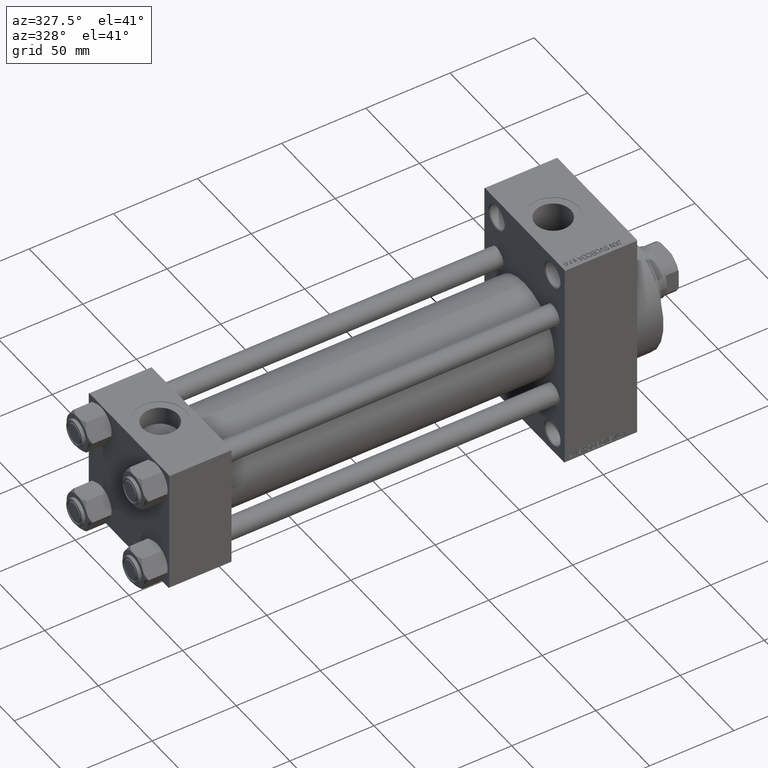
[diagram: clean part render]
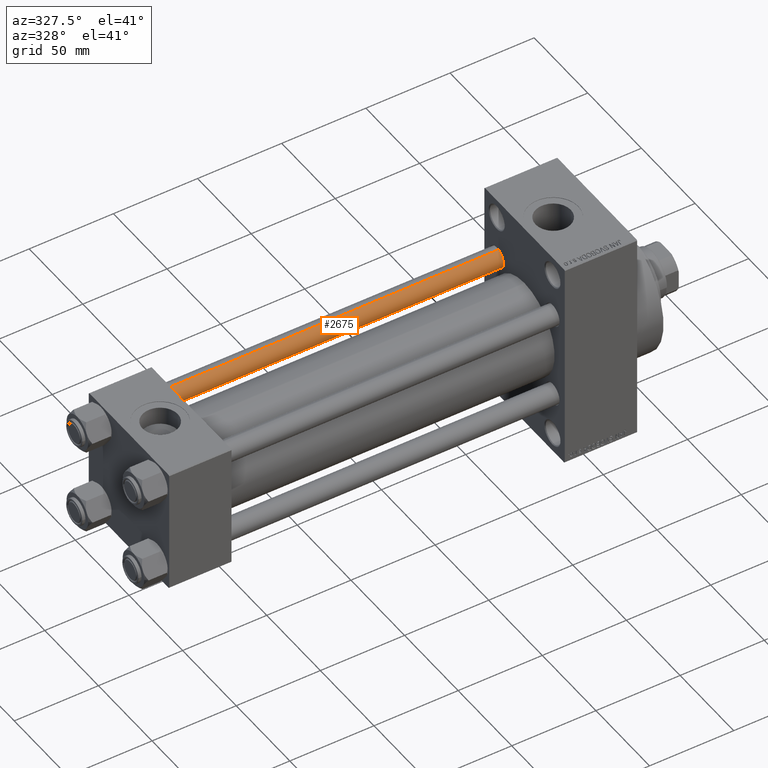
[diagram: same view with one face highlighted and labeled with its STEP entity id]
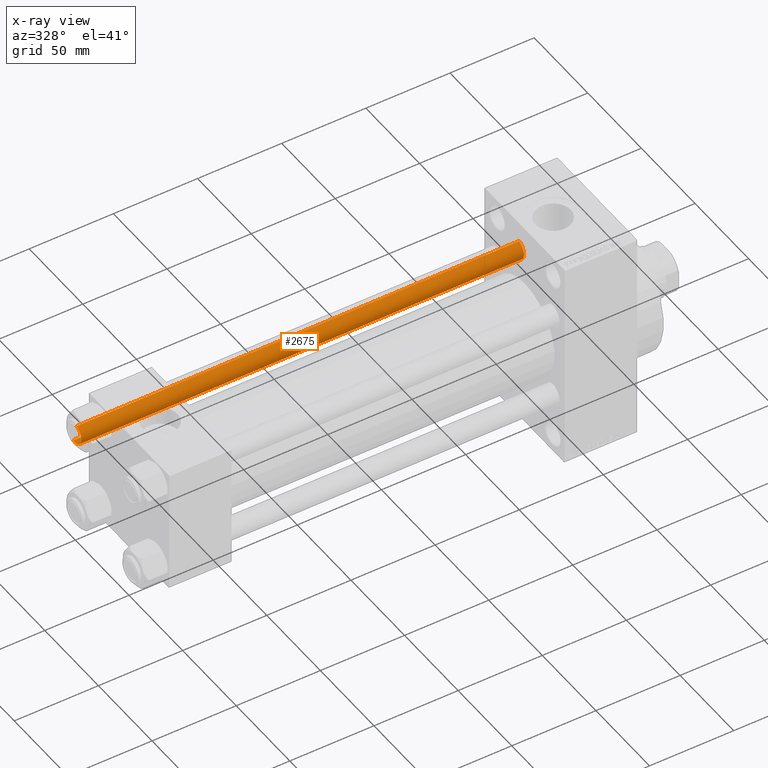
[diagram: x-ray of the same camera — body ghosted, the highlighted face saturated]
A machine part, auxiliary view. The second image highlights one B-rep face of the part: STEP entity #2675.
The next image is the same camera in x-ray: the body ghosted, the highlighted face saturated — about 0% of this face is hidden behind the body in this view.
In plain terms, the highlighted cylindrical surface (edge-blend (fillet) strip) has radius 6 mm, axis along (-1, -0, 0).
Its self-contained STEP definition (entity closure, byte-faithful):
#136 = VERTEX_POINT ( 'NONE', #18046 ) ;
#387 = ORIENTED_EDGE ( 'NONE', *, *, #24509, .T. ) ;
#1089 = CARTESIAN_POINT ( 'NONE',  ( 0.000000000000000000, 0.000000000000000000, 0.5000000000000559552 ) ) ;
#1112 = ORIENTED_EDGE ( 'NONE', *, *, #36947, .F. ) ;
#2675 = ADVANCED_FACE ( 'NONE', ( #31150 ), #12970, .T. ) ;
#3043 = CARTESIAN_POINT ( 'NONE',  ( -6.000000000000000888, 0.000000000000000000, 264.0000000000000000 ) ) ;
#5539 = VERTEX_POINT ( 'NONE', #25269 ) ;
#5643 = EDGE_CURVE ( 'NONE', #21197, #46871, #29186, .T. ) ;
#6100 = CARTESIAN_POINT ( 'NONE',  ( 6.000000000000000888, 7.347880794884120722E-16, 264.0000000000000000 ) ) ;
#11184 = LINE ( 'NONE', #3043, #37080 ) ;
#12970 = CYLINDRICAL_SURFACE ( 'NONE', #26904, 6.000000000000000888 ) ;
#13320 = EDGE_CURVE ( 'NONE', #46871, #5539, #11184, .T. ) ;
#13900 = DIRECTION ( 'NONE',  ( -0.000000000000000000, -0.000000000000000000, -1.000000000000000000 ) ) ;
#15223 = DIRECTION ( 'NONE',  ( 0.000000000000000000, 0.000000000000000000, -1.000000000000000000 ) ) ;
#15702 = DIRECTION ( 'NONE',  ( 1.000000000000000000, 0.000000000000000000, 0.000000000000000000 ) ) ;
#15723 = DIRECTION ( 'NONE',  ( -0.000000000000000000, -0.000000000000000000, 1.000000000000000000 ) ) ;
#18046 = CARTESIAN_POINT ( 'NONE',  ( 6.000000000000000888, 7.347880794884120722E-16, 0.5000000000000559552 ) ) ;
#19771 = CARTESIAN_POINT ( 'NONE',  ( 0.000000000000000000, 0.000000000000000000, 263.5000000000000568 ) ) ;
#20047 = ORIENTED_EDGE ( 'NONE', *, *, #5643, .T. ) ;
#21197 = VERTEX_POINT ( 'NONE', #44230 ) ;
#21892 = EDGE_LOOP ( 'NONE', ( #1112, #20047, #46112, #387 ) ) ;
#24509 = EDGE_CURVE ( 'NONE', #5539, #136, #47153, .T. ) ;
#25074 = DIRECTION ( 'NONE',  ( -0.000000000000000000, -0.000000000000000000, -1.000000000000000000 ) ) ;
#25269 = CARTESIAN_POINT ( 'NONE',  ( -6.000000000000000888, 0.000000000000000000, 0.5000000000000559552 ) ) ;
#25666 = AXIS2_PLACEMENT_3D ( 'NONE', #1089, #15723, #27664 ) ;
#26904 = AXIS2_PLACEMENT_3D ( 'NONE', #35206, #13900, #32090 ) ;
#27664 = DIRECTION ( 'NONE',  ( 1.000000000000000000, 0.000000000000000000, 0.000000000000000000 ) ) ;
#29058 = DIRECTION ( 'NONE',  ( -0.000000000000000000, -0.000000000000000000, -1.000000000000000000 ) ) ;
#29186 = CIRCLE ( 'NONE', #43749, 6.000000000000000888 ) ;
#31150 = FACE_OUTER_BOUND ( 'NONE', #21892, .T. ) ;
#32090 = DIRECTION ( 'NONE',  ( -1.000000000000000000, 0.000000000000000000, 0.000000000000000000 ) ) ;
#34880 = CARTESIAN_POINT ( 'NONE',  ( -6.000000000000000888, 0.000000000000000000, 263.5000000000000568 ) ) ;
#35206 = CARTESIAN_POINT ( 'NONE',  ( 0.000000000000000000, 0.000000000000000000, 264.0000000000000000 ) ) ;
#36947 = EDGE_CURVE ( 'NONE', #21197, #136, #43232, .T. ) ;
#37080 = VECTOR ( 'NONE', #25074, 1000.000000000000000 ) ;
#39023 = VECTOR ( 'NONE', #29058, 1000.000000000000000 ) ;
#43232 = LINE ( 'NONE', #6100, #39023 ) ;
#43749 = AXIS2_PLACEMENT_3D ( 'NONE', #19771, #15223, #15702 ) ;
#44230 = CARTESIAN_POINT ( 'NONE',  ( 6.000000000000000888, 7.347880794884120722E-16, 263.5000000000000568 ) ) ;
#46112 = ORIENTED_EDGE ( 'NONE', *, *, #13320, .T. ) ;
#46871 = VERTEX_POINT ( 'NONE', #34880 ) ;
#47153 = CIRCLE ( 'NONE', #25666, 6.000000000000000888 ) ;